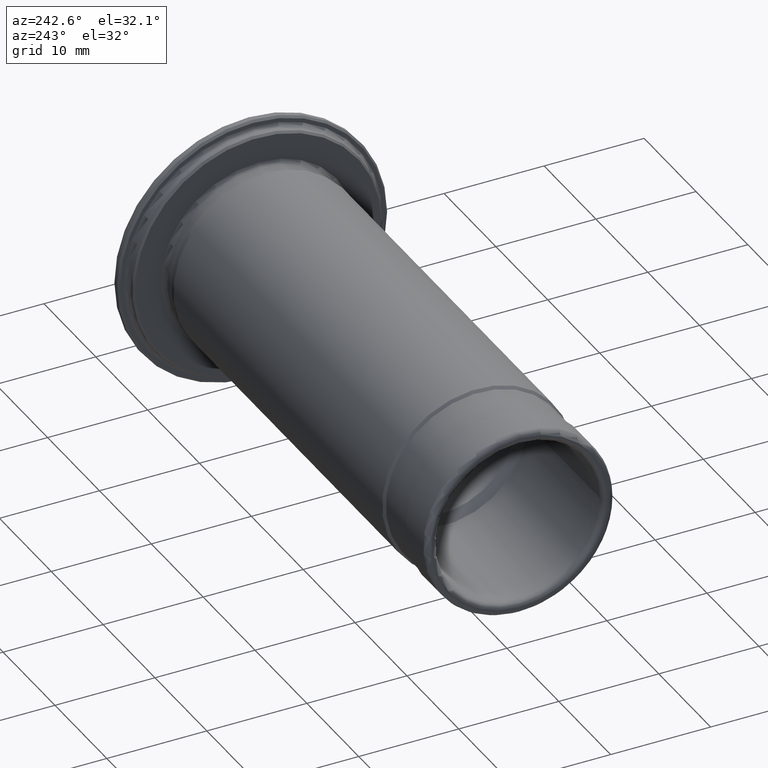
[diagram: clean part render]
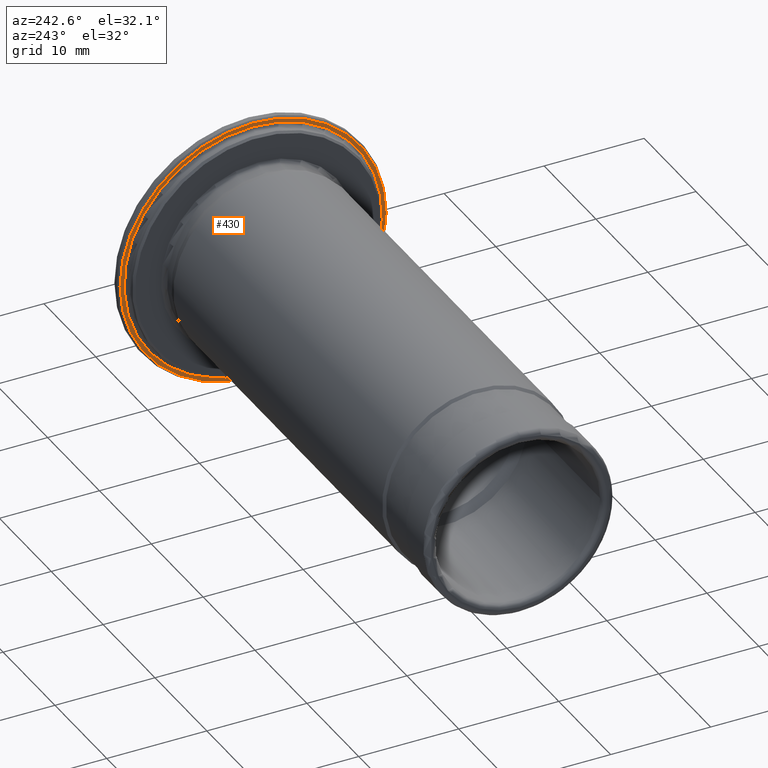
[diagram: same view with one face highlighted and labeled with its STEP entity id]
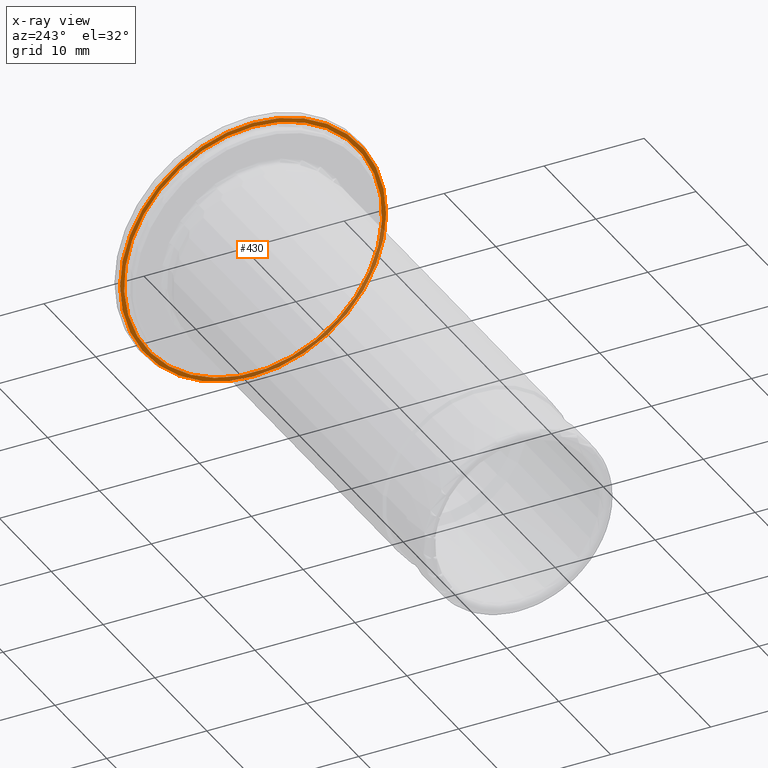
[diagram: x-ray of the same camera — body ghosted, the highlighted face saturated]
A machine part, auxiliary view. The second image highlights one B-rep face of the part: STEP entity #430.
The next image is the same camera in x-ray: the body ghosted, the highlighted face saturated — about 26% of this face is hidden behind the body in this view.
In plain terms, the highlighted planar face has unit normal (-1, 0, 0).
Its self-contained STEP definition (entity closure, byte-faithful):
#16=FACE_BOUND('',#79,.T.);
#20=PLANE('',#498);
#48=FACE_OUTER_BOUND('',#78,.T.);
#78=EDGE_LOOP('',(#324));
#79=EDGE_LOOP('',(#325));
#151=CIRCLE('',#497,12.8999999999993);
#152=CIRCLE('',#499,13.3000000000003);
#195=VERTEX_POINT('',#760);
#196=VERTEX_POINT('',#764);
#241=EDGE_CURVE('',#195,#195,#151,.T.);
#242=EDGE_CURVE('',#196,#196,#152,.T.);
#324=ORIENTED_EDGE('',*,*,#242,.F.);
#325=ORIENTED_EDGE('',*,*,#241,.T.);
#430=ADVANCED_FACE('',(#48,#16),#20,.T.);
#497=AXIS2_PLACEMENT_3D('',#762,#602,#603);
#498=AXIS2_PLACEMENT_3D('',#763,#604,#605);
#499=AXIS2_PLACEMENT_3D('',#765,#606,#607);
#602=DIRECTION('center_axis',(1.,0.,0.));
#603=DIRECTION('ref_axis',(0.,0.,-1.));
#604=DIRECTION('center_axis',(-1.,0.,0.));
#605=DIRECTION('ref_axis',(0.,0.,1.));
#606=DIRECTION('center_axis',(1.,0.,0.));
#607=DIRECTION('ref_axis',(0.,0.,-1.));
#760=CARTESIAN_POINT('',(-1.03734443764893,-1.5797943709E-15,12.8999999999993));
#762=CARTESIAN_POINT('Origin',(-1.03734443764893,0.,0.));
#763=CARTESIAN_POINT('Origin',(-1.03734443764893,13.3000000000003,0.));
#764=CARTESIAN_POINT('',(-1.03734443764893,-13.3000000000003,-1.62878024286602E-15));
#765=CARTESIAN_POINT('Origin',(-1.03734443764893,0.,0.));